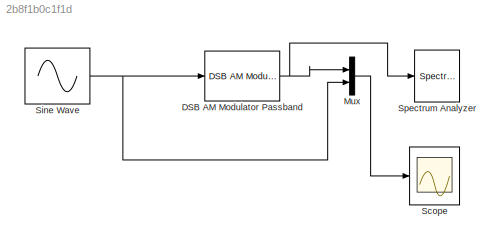
MODEL slx_2b8f1b0c1f1d
KIND model
CONFIG AbsTol = auto
CONFIG FixedStep = auto
CONFIG MaxStep = auto
CONFIG MinStep = auto
CONFIG RelTol = 1e-3
CONFIG SampleTimeConstraint = Unconstrained
CONFIG Solver = ode45
CONFIG SolverMode = Auto
CONFIG SolverName = ode45
CONFIG StartTime = 0.0
CONFIG StopTime = 8
BLOCK [Reference] DSB AM Modulator Passband  REF=commanapbnd3/DSB AM
Modulator
Passband
  Fc = 300
  Offset = 0
  Ph = 0
  Ports = [1, 1]
  SourceBlock = commanapbnd3/DSB AM\nModulator\nPassband
  SourceType = DSB AM Modulator Passband
BLOCK [Mux] Mux
  DisplayOption = bar
  Inputs = 2
  Ports = [2, 1]
BLOCK [Scope] Scope
  Floating = off
  LimitDataPoints = off
  NumInputPorts = 1
  Ports = [1]
  ShowLegends = on
BLOCK [Sin] Sine Wave
  Amplitude = 2
  Frequency = 3
  Ports = [0, 1]
  SampleTime = 0.001
BLOCK [SpectrumAnalyzer] Spectrum Analyzer
  Ports = [1]
  ScopeSpecificationString = spbscopes.SpectrumAnalyzerBlockCfg('CurrentConfiguration', extmgr.ConfigurationSet(extmgr.Configuration('Core','General UI',true),extmgr.Configuration('Core','Source UI',true),extmgr.Configuration('Sources','WiredSimulink',true),extmgr.Configuration('Sources','Simulink',false),extmgr.Configuration('Sources','SimulinkEvent',false),extmgr.Configuration('Sources','File',false),extmgr.Configuration('S...<+7190ch>
NET DSB AM Modulator Passband:1 -> Mux:1, Spectrum Analyzer:1
LINE Mux:1 -> Scope:1
NET Sine Wave:1 -> DSB AM Modulator Passband:1, Mux:2
note: NET lines group one-source signal fan-out (src -> all destinations, sorted); 1:1 wires keep LINE
